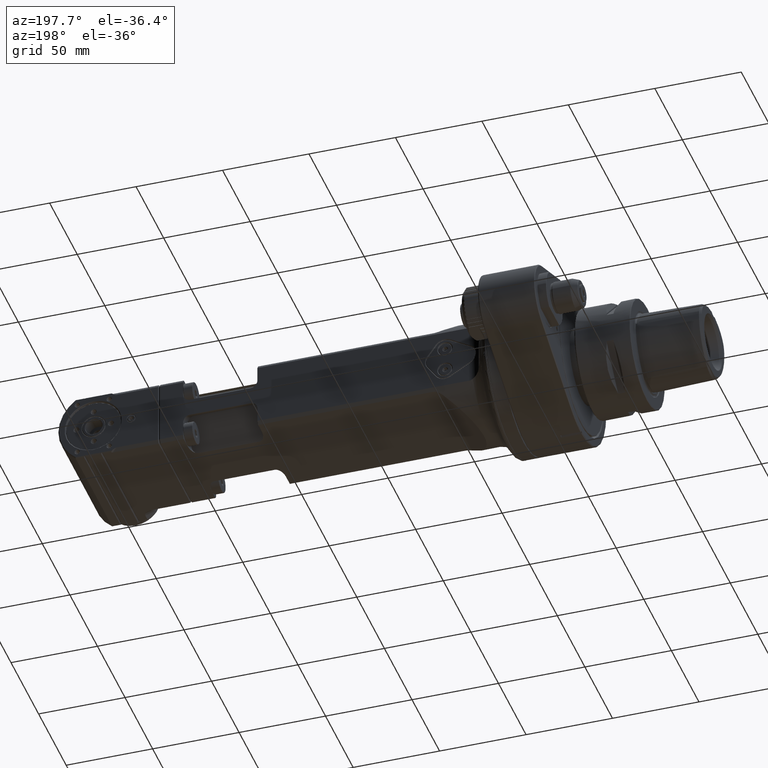
[diagram: clean part render]
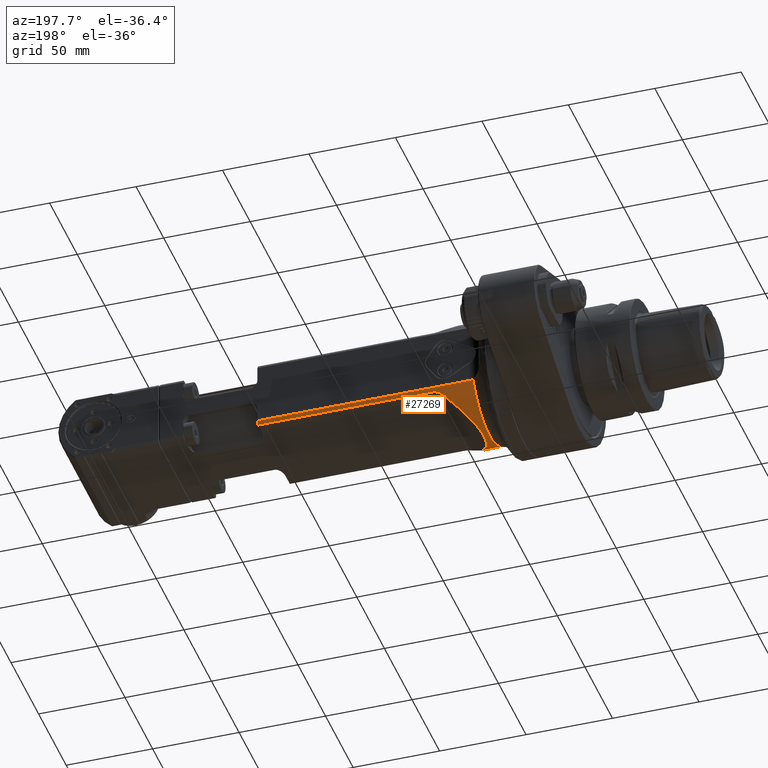
[diagram: same view with one face highlighted and labeled with its STEP entity id]
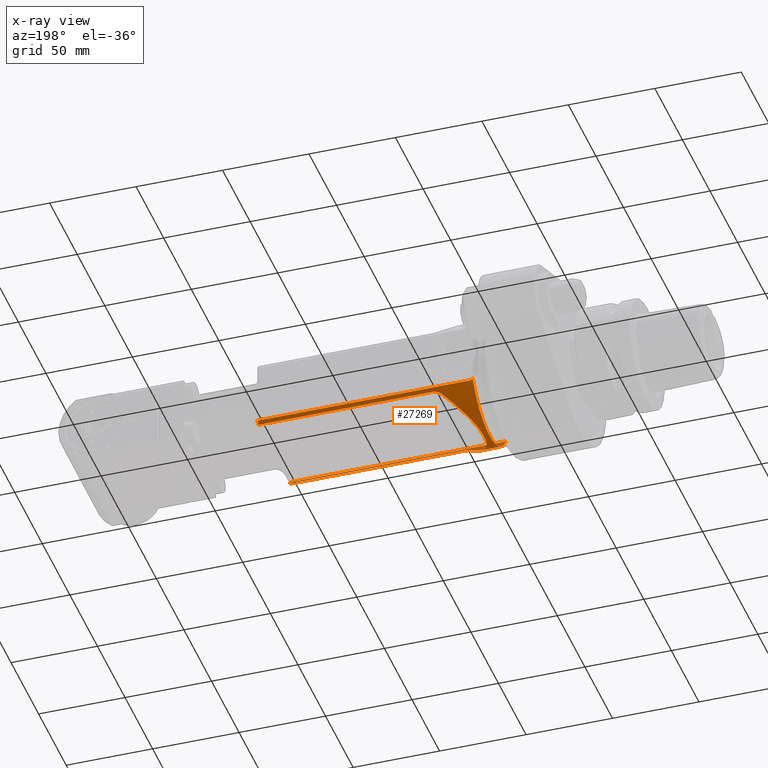
[diagram: x-ray of the same camera — body ghosted, the highlighted face saturated]
A machine part, auxiliary view. The second image highlights one B-rep face of the part: STEP entity #27269.
The next image is the same camera in x-ray: the body ghosted, the highlighted face saturated — about 0% of this face is hidden behind the body in this view.
In plain terms, the highlighted cylindrical surface (partial cylindrical patch) has radius 35 mm, axis along (1, 0, 0).
Its self-contained STEP definition (entity closure, byte-faithful):
#283=B_SPLINE_CURVE_WITH_KNOTS('',3,(#49737,#49738,#49739,#49740,#49741,
#49742,#49743,#49744,#49745,#49746,#49747,#49748,#49749,#49750,#49751,#49752,
#49753,#49754,#49755,#49756,#49757,#49758),.UNSPECIFIED.,.F.,.F.,(4,2,2,
2,2,2,2,2,2,2,4),(0.,0.1,0.2,0.3,0.4,0.5,0.6,0.7,0.8,0.9,1.),
 .UNSPECIFIED.);
#285=B_SPLINE_CURVE_WITH_KNOTS('',3,(#49789,#49790,#49791,#49792,#49793,
#49794,#49795,#49796,#49797,#49798,#49799,#49800,#49801,#49802,#49803,#49804,
#49805,#49806,#49807,#49808,#49809,#49810),.UNSPECIFIED.,.F.,.F.,(4,2,2,
2,2,2,2,2,2,2,4),(0.,0.1,0.2,0.3,0.4,0.5,0.6,0.7,0.8,0.9,1.),
 .UNSPECIFIED.);
#286=B_SPLINE_CURVE_WITH_KNOTS('',3,(#49818,#49819,#49820,#49821,#49822,
#49823,#49824,#49825,#49826,#49827,#49828,#49829,#49830,#49831,#49832,#49833,
#49834,#49835,#49836,#49837,#49838,#49839,#49840,#49841,#49842,#49843,#49844,
#49845,#49846,#49847,#49848,#49849,#49850,#49851,#49852,#49853),
 .UNSPECIFIED.,.F.,.F.,(4,2,2,2,2,2,2,2,2,2,2,2,2,2,2,2,2,4),(0.,0.05882352941176,
0.1176470588235,0.1764705882353,0.2352941176471,0.2941176470588,0.3529411764706,
0.4117647058824,0.4705882352941,0.5294117647059,0.5882352941176,0.6470588235294,
0.7058823529412,0.7647058823529,0.8235294117647,0.8823529411765,0.9411764705882,
1.),.UNSPECIFIED.);
#287=B_SPLINE_CURVE_WITH_KNOTS('',3,(#49857,#49858,#49859,#49860,#49861,
#49862,#49863,#49864,#49865,#49866,#49867,#49868,#49869,#49870,#49871,#49872,
#49873,#49874,#49875,#49876,#49877,#49878,#49879,#49880,#49881,#49882,#49883,
#49884,#49885,#49886,#49887,#49888,#49889,#49890,#49891,#49892),
 .UNSPECIFIED.,.F.,.F.,(4,2,2,2,2,2,2,2,2,2,2,2,2,2,2,2,2,4),(0.,0.05882352941176,
0.1176470588235,0.1764705882353,0.2352941176471,0.2941176470588,0.3529411764706,
0.4117647058824,0.4705882352941,0.5294117647059,0.5882352941176,0.6470588235294,
0.7058823529412,0.7647058823529,0.8235294117647,0.8823529411765,0.9411764705882,
1.),.UNSPECIFIED.);
#535=ELLIPSE('',#29415,54.4503339401173,35.);
#1572=CIRCLE('',#29409,35.);
#1573=CIRCLE('',#29413,35.);
#1574=CIRCLE('',#29414,35.);
#2166=CYLINDRICAL_SURFACE('',#29412,35.);
#2828=FACE_OUTER_BOUND('',#4456,.T.);
#4456=EDGE_LOOP('',(#20431,#20432,#20433,#20434,#20435,#20436,#20437,#20438,
#20439,#20440,#20441,#20442));
#6317=LINE('',#49787,#8921);
#6318=LINE('',#49812,#8922);
#6319=LINE('',#49816,#8923);
#6320=LINE('',#49893,#8924);
#8921=VECTOR('',#33832,122.4387861803);
#8922=VECTOR('',#33833,122.4387861803);
#8923=VECTOR('',#33836,100.794398311);
#8924=VECTOR('',#33839,100.794398311);
#11728=VERTEX_POINT('',#49575);
#11729=VERTEX_POINT('',#49655);
#11730=VERTEX_POINT('',#49736);
#11732=VERTEX_POINT('',#49784);
#11733=VERTEX_POINT('',#49785);
#11734=VERTEX_POINT('',#49788);
#11735=VERTEX_POINT('',#49811);
#11736=VERTEX_POINT('',#49813);
#11737=VERTEX_POINT('',#49815);
#11738=VERTEX_POINT('',#49817);
#11739=VERTEX_POINT('',#49854);
#11740=VERTEX_POINT('',#49856);
#14902=EDGE_CURVE('',#11729,#11728,#1572,.T.);
#14905=EDGE_CURVE('',#11730,#11729,#283,.T.);
#14908=EDGE_CURVE('',#11732,#11733,#1573,.T.);
#14909=EDGE_CURVE('',#11730,#11732,#6317,.T.);
#14910=EDGE_CURVE('',#11728,#11734,#285,.T.);
#14911=EDGE_CURVE('',#11734,#11735,#6318,.T.);
#14912=EDGE_CURVE('',#11736,#11735,#1574,.T.);
#14913=EDGE_CURVE('',#11737,#11736,#6319,.T.);
#14914=EDGE_CURVE('',#11737,#11738,#286,.T.);
#14915=EDGE_CURVE('',#11739,#11738,#535,.T.);
#14916=EDGE_CURVE('',#11739,#11740,#287,.T.);
#14917=EDGE_CURVE('',#11740,#11733,#6320,.T.);
#20431=ORIENTED_EDGE('',*,*,#14908,.F.);
#20432=ORIENTED_EDGE('',*,*,#14909,.F.);
#20433=ORIENTED_EDGE('',*,*,#14905,.T.);
#20434=ORIENTED_EDGE('',*,*,#14902,.T.);
#20435=ORIENTED_EDGE('',*,*,#14910,.T.);
#20436=ORIENTED_EDGE('',*,*,#14911,.T.);
#20437=ORIENTED_EDGE('',*,*,#14912,.F.);
#20438=ORIENTED_EDGE('',*,*,#14913,.F.);
#20439=ORIENTED_EDGE('',*,*,#14914,.T.);
#20440=ORIENTED_EDGE('',*,*,#14915,.F.);
#20441=ORIENTED_EDGE('',*,*,#14916,.T.);
#20442=ORIENTED_EDGE('',*,*,#14917,.T.);
#27269=ADVANCED_FACE('',(#2828),#2166,.T.);
#29409=AXIS2_PLACEMENT_3D('',#49656,#33820,#33821);
#29412=AXIS2_PLACEMENT_3D('',#49783,#33828,#33829);
#29413=AXIS2_PLACEMENT_3D('',#49786,#33830,#33831);
#29414=AXIS2_PLACEMENT_3D('',#49814,#33834,#33835);
#29415=AXIS2_PLACEMENT_3D('',#49855,#33837,#33838);
#33820=DIRECTION('center_axis',(0.,1.,0.));
#33821=DIRECTION('ref_axis',(-0.865703462490004,0.,0.500557204555902));
#33828=DIRECTION('center_axis',(0.,1.,0.));
#33829=DIRECTION('ref_axis',(1.,0.,0.));
#33830=DIRECTION('center_axis',(0.,1.,0.));
#33831=DIRECTION('ref_axis',(-0.857142857142874,0.,0.515078753637684));
#33832=DIRECTION('',(0.,1.,0.));
#33833=DIRECTION('',(0.,1.,0.));
#33834=DIRECTION('center_axis',(0.,1.,0.));
#33835=DIRECTION('ref_axis',(0.82065180664828,0.,0.571428571428586));
#33836=DIRECTION('',(0.,1.,0.));
#33837=DIRECTION('center_axis',(0.,0.642787609686505,0.766044443119007));
#33838=DIRECTION('ref_axis',(0.,0.766044443119007,-0.642787609686505));
#33839=DIRECTION('',(0.,1.,0.));
#49575=CARTESIAN_POINT('',(30.29962118715,45.39230484541,17.51950215946));
#49655=CARTESIAN_POINT('',(-30.29962118715,45.39230484541,17.51950215946));
#49656=CARTESIAN_POINT('Origin',(0.,45.39230484541,0.));
#49736=CARTESIAN_POINT('',(-30.,47.56121381967,18.02775637732));
#49737=CARTESIAN_POINT('Ctrl Pts',(-30.,47.56121381967,18.02775637732));
#49738=CARTESIAN_POINT('Ctrl Pts',(-30.,47.48949755093,18.02775637732));
#49739=CARTESIAN_POINT('Ctrl Pts',(-30.000964092013,47.417748994663,18.02615242302));
#49740=CARTESIAN_POINT('Ctrl Pts',(-30.0048288147981,47.2741679477305,18.0197185974533));
#49741=CARTESIAN_POINT('Ctrl Pts',(-30.0077297904662,47.2023354691489,18.0148887261867));
#49742=CARTESIAN_POINT('Ctrl Pts',(-30.0154774122063,47.0586446028581,18.0019767274467));
#49743=CARTESIAN_POINT('Ctrl Pts',(-30.0203239635773,46.986786192954,17.9938945999733));
#49744=CARTESIAN_POINT('Ctrl Pts',(-30.0319713026779,46.8430805289459,17.9744502779167));
#49745=CARTESIAN_POINT('Ctrl Pts',(-30.0387705038122,46.7712331595329,17.9630880833333));
#49746=CARTESIAN_POINT('Ctrl Pts',(-30.0543764378429,46.6272380475776,17.9369633184233));
#49747=CARTESIAN_POINT('Ctrl Pts',(-30.0631849919489,46.555090518949,17.9222007480967));
#49748=CARTESIAN_POINT('Ctrl Pts',(-30.0828423235195,46.4105918600217,17.88918568369));
#49749=CARTESIAN_POINT('Ctrl Pts',(-30.0936913002958,46.3382407257124,17.87093318961));
#49750=CARTESIAN_POINT('Ctrl Pts',(-30.1174453908764,46.1934736112436,17.8308737444467));
#49751=CARTESIAN_POINT('Ctrl Pts',(-30.1303488077964,46.1210573625992,17.8090667933633));
#49752=CARTESIAN_POINT('Ctrl Pts',(-30.1582944875,45.9759330360161,17.7617005530467));
#49753=CARTESIAN_POINT('Ctrl Pts',(-30.1733378572355,45.9032251892453,17.7361412638133));
#49754=CARTESIAN_POINT('Ctrl Pts',(-30.20562202093,45.7575402031337,17.6811031805333));
#49755=CARTESIAN_POINT('Ctrl Pts',(-30.2228634597873,45.6845631912636,17.6516243864867));
#49756=CARTESIAN_POINT('Ctrl Pts',(-30.2595670496406,45.5385007685429,17.588630999535));
#49757=CARTESIAN_POINT('Ctrl Pts',(-30.2790287224313,45.4654152345104,17.55511640663));
#49758=CARTESIAN_POINT('Ctrl Pts',(-30.2996211871509,45.3923048454103,17.51950215946));
#49783=CARTESIAN_POINT('Origin',(0.,-11.35,0.));
#49784=CARTESIAN_POINT('',(-30.,170.,18.02775637732));
#49785=CARTESIAN_POINT('',(-28.72281323269,170.,20.));
#49786=CARTESIAN_POINT('Origin',(1.040949779275E-14,170.,0.));
#49787=CARTESIAN_POINT('',(-30.,47.56121381967,18.02775637732));
#49788=CARTESIAN_POINT('',(30.,47.56121381967,18.02775637732));
#49789=CARTESIAN_POINT('Ctrl Pts',(30.2996211871509,45.3923048454103,17.51950215946));
#49790=CARTESIAN_POINT('Ctrl Pts',(30.2790288602628,45.4654147451608,17.55511616825));
#49791=CARTESIAN_POINT('Ctrl Pts',(30.2595671143156,45.5385004867475,17.5886308834));
#49792=CARTESIAN_POINT('Ctrl Pts',(30.2228630869295,45.6845646994767,17.6516250315467));
#49793=CARTESIAN_POINT('Ctrl Pts',(30.2056212812332,45.7575432928698,17.6811044645433));
#49794=CARTESIAN_POINT('Ctrl Pts',(30.1733361053777,45.9032333428763,17.7361442273833));
#49795=CARTESIAN_POINT('Ctrl Pts',(30.1582921142653,45.9759446776628,17.7617045572267));
#49796=CARTESIAN_POINT('Ctrl Pts',(30.1303458948923,46.1210731724567,17.8090717486233));
#49797=CARTESIAN_POINT('Ctrl Pts',(30.1174425189225,46.1934900935174,17.8308786101767));
#49798=CARTESIAN_POINT('Ctrl Pts',(30.0936883350961,46.338259817683,17.8709381682467));
#49799=CARTESIAN_POINT('Ctrl Pts',(30.0828392423376,46.4106128918412,17.8891908647633));
#49800=CARTESIAN_POINT('Ctrl Pts',(30.063181622874,46.5551169027157,17.9222064003767));
#49801=CARTESIAN_POINT('Ctrl Pts',(30.054372911062,46.6272678454162,17.9369692394733));
#49802=CARTESIAN_POINT('Ctrl Pts',(30.0387669922512,46.7712683053334,17.9630939437667));
#49803=CARTESIAN_POINT('Ctrl Pts',(30.0319679720154,46.8431176100433,17.9744558089633));
#49804=CARTESIAN_POINT('Ctrl Pts',(30.020321480274,46.9868208469661,17.99389877584));
#49805=CARTESIAN_POINT('Ctrl Pts',(30.0154755411053,47.0586748897787,18.00197987752));
#49806=CARTESIAN_POINT('Ctrl Pts',(30.0077288147204,47.2023579827477,18.0148903204667));
#49807=CARTESIAN_POINT('Ctrl Pts',(30.0048281669854,47.2741870572035,18.0197196617333));
#49808=CARTESIAN_POINT('Ctrl Pts',(30.0009639400379,47.4177595996983,18.02615269016));
#49809=CARTESIAN_POINT('Ctrl Pts',(30.,47.48950305572,18.02775637732));
#49810=CARTESIAN_POINT('Ctrl Pts',(30.,47.56121381967,18.02775637732));
#49811=CARTESIAN_POINT('',(30.,170.,18.02775637732));
#49812=CARTESIAN_POINT('',(30.,47.56121381967,18.02775637732));
#49813=CARTESIAN_POINT('',(28.72281323269,170.,20.));
#49814=CARTESIAN_POINT('Origin',(1.040949779275E-14,170.,0.));
#49815=CARTESIAN_POINT('',(28.72281323269,69.20560168898,20.));
#49816=CARTESIAN_POINT('',(28.72281323269,69.20560168898,20.));
#49817=CARTESIAN_POINT('',(27.32455249097,64.06330081149,21.87164445505));
#49818=CARTESIAN_POINT('Ctrl Pts',(28.72281323269,69.20560168898,20.));
#49819=CARTESIAN_POINT('Ctrl Pts',(28.72281323269,69.09772945297,20.));
#49820=CARTESIAN_POINT('Ctrl Pts',(28.721296651535,68.9899387187069,20.0021799598254));
#49821=CARTESIAN_POINT('Ctrl Pts',(28.7152181847233,68.7743753513899,20.0109024441096));
#49822=CARTESIAN_POINT('Ctrl Pts',(28.7106562990667,68.6666028072849,20.0174488753096));
#49823=CARTESIAN_POINT('Ctrl Pts',(28.6984911039767,68.4515101710915,20.0348893143025));
#49824=CARTESIAN_POINT('Ctrl Pts',(28.6908877945433,68.3441897584174,20.0457793486134));
#49825=CARTESIAN_POINT('Ctrl Pts',(28.6726020355333,68.1298459821194,20.0719229100483));
#49826=CARTESIAN_POINT('Ctrl Pts',(28.6619195859567,68.022823072899,20.0871798127956));
#49827=CARTESIAN_POINT('Ctrl Pts',(28.6374630841166,67.8094230332737,20.1220323857584));
#49828=CARTESIAN_POINT('Ctrl Pts',(28.6236890318533,67.7030455845178,20.141626554256));
#49829=CARTESIAN_POINT('Ctrl Pts',(28.5930213869434,67.4910576713445,20.1851393568777));
#49830=CARTESIAN_POINT('Ctrl Pts',(28.5761277942967,67.3854471064201,20.2090571356795));
#49831=CARTESIAN_POINT('Ctrl Pts',(28.5391498776033,67.1749940479925,20.2612413122075));
#49832=CARTESIAN_POINT('Ctrl Pts',(28.5190655535566,67.0701521663544,20.2895103800274));
#49833=CARTESIAN_POINT('Ctrl Pts',(28.4757072042233,66.8616300657255,20.350320799356));
#49834=CARTESIAN_POINT('Ctrl Pts',(28.4524331789367,66.7579488388689,20.3828586643937));
#49835=CARTESIAN_POINT('Ctrl Pts',(28.4025794346,66.5516267643543,20.4522676451322));
#49836=CARTESIAN_POINT('Ctrl Pts',(28.37599971555,66.4489869579453,20.4891417543303));
#49837=CARTESIAN_POINT('Ctrl Pts',(28.3195081279,66.245076204295,20.5671536262053));
#49838=CARTESIAN_POINT('Ctrl Pts',(28.2895962593,66.1438045973822,20.6082898316443));
#49839=CARTESIAN_POINT('Ctrl Pts',(28.2263552440267,65.942721575188,20.6948241632312));
#49840=CARTESIAN_POINT('Ctrl Pts',(28.1930260973534,65.8429101181209,20.740222024483));
#49841=CARTESIAN_POINT('Ctrl Pts',(28.1228290341366,65.644812629161,20.8353051616973));
#49842=CARTESIAN_POINT('Ctrl Pts',(28.0859611175933,65.5465274102147,20.8849922575926));
#49843=CARTESIAN_POINT('Ctrl Pts',(28.00866027708,65.3518095984114,20.9885489180406));
#49844=CARTESIAN_POINT('Ctrl Pts',(27.96822735311,65.2553755237531,21.0424156320337));
#49845=CARTESIAN_POINT('Ctrl Pts',(27.8835891863201,65.0642770889987,21.1544395736067));
#49846=CARTESIAN_POINT('Ctrl Pts',(27.8393839435,64.9696144914793,21.2125998153242));
#49847=CARTESIAN_POINT('Ctrl Pts',(27.7471744987866,64.7824227858302,21.3330758820084));
#49848=CARTESIAN_POINT('Ctrl Pts',(27.6991702968933,64.6898919422232,21.3953890380869));
#49849=CARTESIAN_POINT('Ctrl Pts',(27.5991383022333,64.5069389532864,21.5242692326362));
#49850=CARTESIAN_POINT('Ctrl Pts',(27.5471105094667,64.4165183598462,21.5908384231947));
#49851=CARTESIAN_POINT('Ctrl Pts',(27.438957521225,64.2380855882607,21.7281218889332));
#49852=CARTESIAN_POINT('Ctrl Pts',(27.38283232575,64.1500721710788,21.7988346392185));
#49853=CARTESIAN_POINT('Ctrl Pts',(27.32455249097,64.0633008114881,21.8716444550478));
#49854=CARTESIAN_POINT('',(-27.32455249097,64.06330081149,21.87164445505));
#49855=CARTESIAN_POINT('Origin',(0.,90.1289116667414,0.));
#49856=CARTESIAN_POINT('',(-28.72281323269,69.20560168898,20.));
#49857=CARTESIAN_POINT('Ctrl Pts',(-27.32455249097,64.0633008114881,21.8716444550478));
#49858=CARTESIAN_POINT('Ctrl Pts',(-27.38283244385,64.1500723469044,21.7988344916833));
#49859=CARTESIAN_POINT('Ctrl Pts',(-27.4389580994,64.2380863567361,21.7281212167145));
#49860=CARTESIAN_POINT('Ctrl Pts',(-27.5471143129967,64.4165248203045,21.5908335335847));
#49861=CARTESIAN_POINT('Ctrl Pts',(-27.5991448710433,64.5069505885375,21.5242607434276));
#49862=CARTESIAN_POINT('Ctrl Pts',(-27.6991790292566,64.6899082925733,21.3953778130425));
#49863=CARTESIAN_POINT('Ctrl Pts',(-27.7471826294233,64.7824385677676,21.3330653666202));
#49864=CARTESIAN_POINT('Ctrl Pts',(-27.83939374851,64.969635119376,21.2125868975131));
#49865=CARTESIAN_POINT('Ctrl Pts',(-27.8836012674301,65.0643032147815,21.1544236811109));
#49866=CARTESIAN_POINT('Ctrl Pts',(-27.9682427635767,65.2554114714065,21.0423951366063));
#49867=CARTESIAN_POINT('Ctrl Pts',(-28.0086767408033,65.3518498769885,20.9885267888467));
#49868=CARTESIAN_POINT('Ctrl Pts',(-28.08597644548,65.5465672118094,20.8849717980865));
#49869=CARTESIAN_POINT('Ctrl Pts',(-28.12284217293,65.6448474680435,20.8352877390057));
#49870=CARTESIAN_POINT('Ctrl Pts',(-28.19304234973,65.8429582239729,20.7401996355269));
#49871=CARTESIAN_POINT('Ctrl Pts',(-28.22637679908,65.9427882147804,20.6947943843327));
#49872=CARTESIAN_POINT('Ctrl Pts',(-28.28961743015,66.1438738118248,20.6082611476834));
#49873=CARTESIAN_POINT('Ctrl Pts',(-28.31952361187,66.2451291099251,20.5671326142869));
#49874=CARTESIAN_POINT('Ctrl Pts',(-28.3760115623266,66.4490327040225,20.4891250245991));
#49875=CARTESIAN_POINT('Ctrl Pts',(-28.4025933310634,66.5516819081565,20.452248202046));
#49876=CARTESIAN_POINT('Ctrl Pts',(-28.4524477546,66.7580115345524,20.3828384655101));
#49877=CARTESIAN_POINT('Ctrl Pts',(-28.4757204094,66.861690832575,20.3503022645224));
#49878=CARTESIAN_POINT('Ctrl Pts',(-28.5190753279433,67.070201910406,20.2894966874651));
#49879=CARTESIAN_POINT('Ctrl Pts',(-28.5391575916867,67.1750346401327,20.2612306493743));
#49880=CARTESIAN_POINT('Ctrl Pts',(-28.5761346801667,67.3854896119298,20.2090471937622));
#49881=CARTESIAN_POINT('Ctrl Pts',(-28.5930295049034,67.4911113737869,20.1851276042343));
#49882=CARTESIAN_POINT('Ctrl Pts',(-28.6236958950867,67.7030954386035,20.1416170511631));
#49883=CARTESIAN_POINT('Ctrl Pts',(-28.6374674605333,67.8094577195703,20.1220263419809));
#49884=CARTESIAN_POINT('Ctrl Pts',(-28.6619214686533,68.0228430003021,20.0871769371406));
#49885=CARTESIAN_POINT('Ctrl Pts',(-28.6726039113267,68.1298663779425,20.0719201513508));
#49886=CARTESIAN_POINT('Ctrl Pts',(-28.69088929476,68.3442089405868,20.0457772800238));
#49887=CARTESIAN_POINT('Ctrl Pts',(-28.69849223552,68.4515276639501,20.0348876994014));
#49888=CARTESIAN_POINT('Ctrl Pts',(-28.7106568053933,68.6666142682328,20.0174481425645));
#49889=CARTESIAN_POINT('Ctrl Pts',(-28.7152184345067,68.7743824626565,20.0109020973348));
#49890=CARTESIAN_POINT('Ctrl Pts',(-28.721296648155,68.9899403487965,20.0021799528953));
#49891=CARTESIAN_POINT('Ctrl Pts',(-28.72281323269,69.09772995394,20.));
#49892=CARTESIAN_POINT('Ctrl Pts',(-28.72281323269,69.20560168898,20.));
#49893=CARTESIAN_POINT('',(-28.72281323269,69.20560168898,20.));